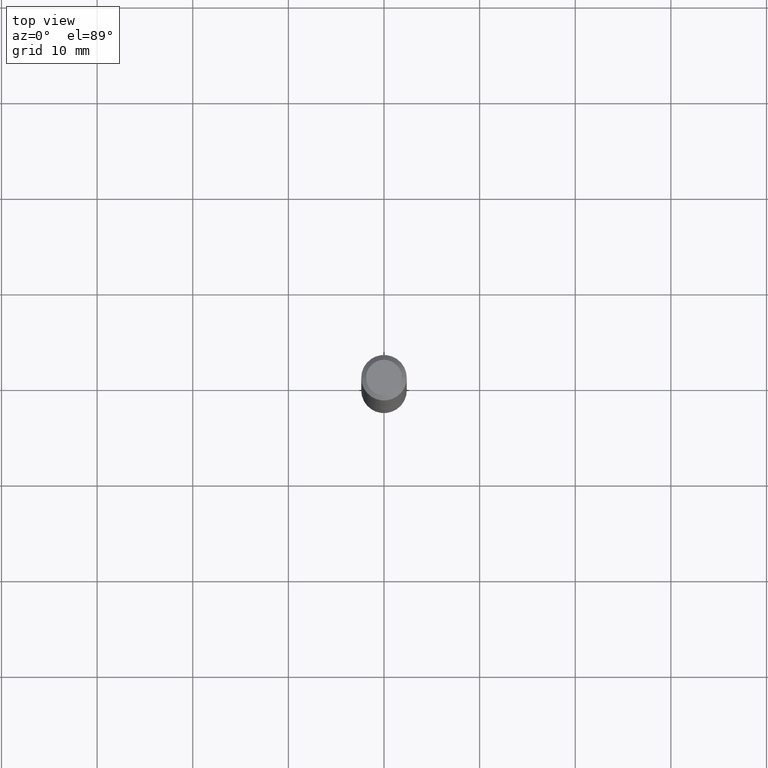
[diagram: clean part render]
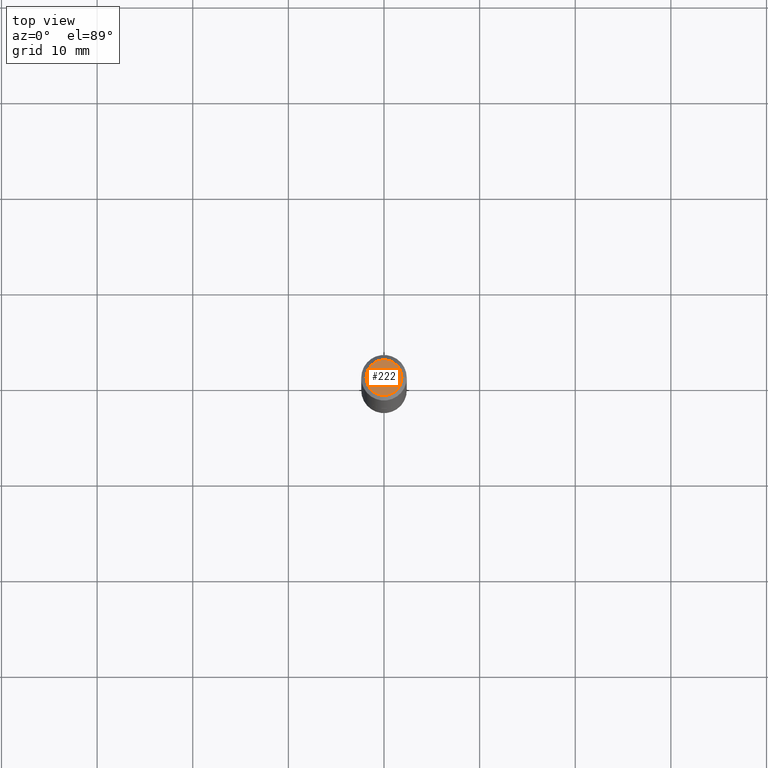
[diagram: same view with one face highlighted and labeled with its STEP entity id]
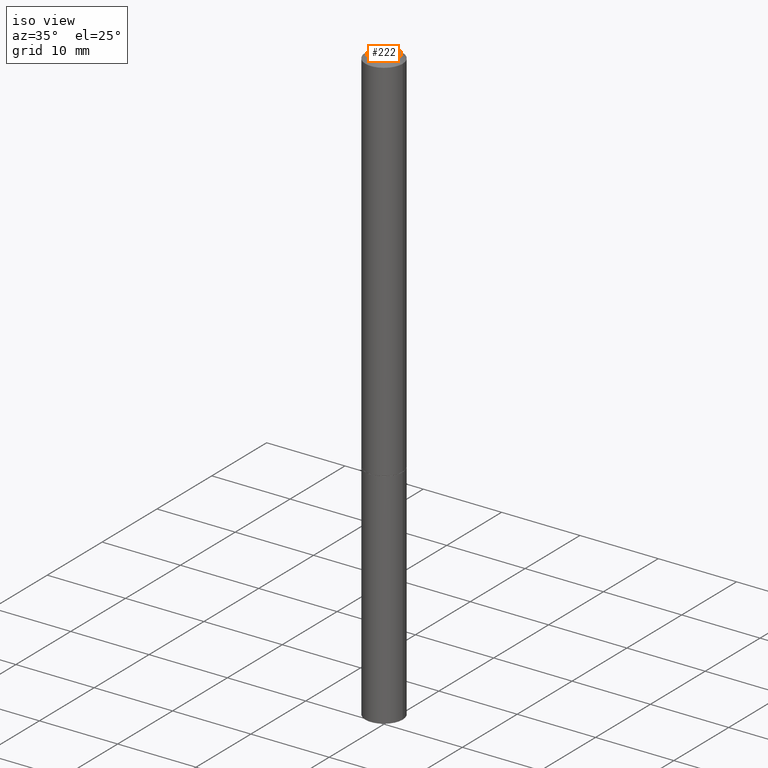
[diagram: same view with one face highlighted and labeled with its STEP entity id]
A machine part, top view. The second image highlights one B-rep face of the part: STEP entity #222.
A second angle (iso view) of the same face is appended — the face is thin or edge-on in the first view.
In plain terms, the highlighted planar face has unit normal (0, -0, -1).
Its self-contained STEP definition (entity closure, byte-faithful):
#10 = FACE_OUTER_BOUND ( 'NONE', #381, .T. ) ;
#30 = CIRCLE ( 'NONE', #148, 0.07374999999999981570 ) ;
#31 = DIRECTION ( 'NONE',  ( 1.000000000000000000, -6.982962677686265922E-15, 4.876176775795935793E-29 ) ) ;
#35 = ORIENTED_EDGE ( 'NONE', *, *, #157, .T. ) ;
#58 = DIRECTION ( 'NONE',  ( 1.000000000000000000, -6.982962677686265922E-15, 4.876176775795935793E-29 ) ) ;
#67 = CARTESIAN_POINT ( 'NONE',  ( 5.149934974793608091E-16, 0.07374999999999981570, -2.574967487396813413E-16 ) ) ;
#72 = CIRCLE ( 'NONE', #119, 0.07374999999999981570 ) ;
#82 = EDGE_CURVE ( 'NONE', #357, #88, #30, .T. ) ;
#88 = VERTEX_POINT ( 'NONE', #184 ) ;
#91 = ORIENTED_EDGE ( 'NONE', *, *, #82, .T. ) ;
#119 = AXIS2_PLACEMENT_3D ( 'NONE', #190, #161, #31 ) ;
#126 = DIRECTION ( 'NONE',  ( -1.000000000000000000, 6.982962677686265922E-15, -4.876176775795935793E-29 ) ) ;
#133 = PLANE ( 'NONE',  #340 ) ;
#148 = AXIS2_PLACEMENT_3D ( 'NONE', #384, #245, #58 ) ;
#157 = EDGE_CURVE ( 'NONE', #88, #357, #72, .T. ) ;
#161 = DIRECTION ( 'NONE',  ( -2.445468806185136597E-29, 3.491481338843145583E-15, 1.000000000000000000 ) ) ;
#184 = CARTESIAN_POINT ( 'NONE',  ( 0.07374999999999981570, -6.094815207017958239E-16, 3.931526600461595946E-30 ) ) ;
#190 = CARTESIAN_POINT ( 'NONE',  ( 0.000000000000000000, 0.000000000000000000, 0.000000000000000000 ) ) ;
#222 = ADVANCED_FACE ( 'NONE', ( #10 ), #133, .F. ) ;
#245 = DIRECTION ( 'NONE',  ( -2.445468806185136597E-29, 3.491481338843145583E-15, 1.000000000000000000 ) ) ;
#285 = DIRECTION ( 'NONE',  ( 2.438088387897960049E-29, -3.491481338843145188E-15, -1.000000000000000000 ) ) ;
#296 = CARTESIAN_POINT ( 'NONE',  ( -0.07374999999999981570, 5.499083108677918666E-16, -3.723527850031184862E-30 ) ) ;
#340 = AXIS2_PLACEMENT_3D ( 'NONE', #67, #285, #126 ) ;
#357 = VERTEX_POINT ( 'NONE', #296 ) ;
#381 = EDGE_LOOP ( 'NONE', ( #91, #35 ) ) ;
#384 = CARTESIAN_POINT ( 'NONE',  ( 0.000000000000000000, 0.000000000000000000, 0.000000000000000000 ) ) ;